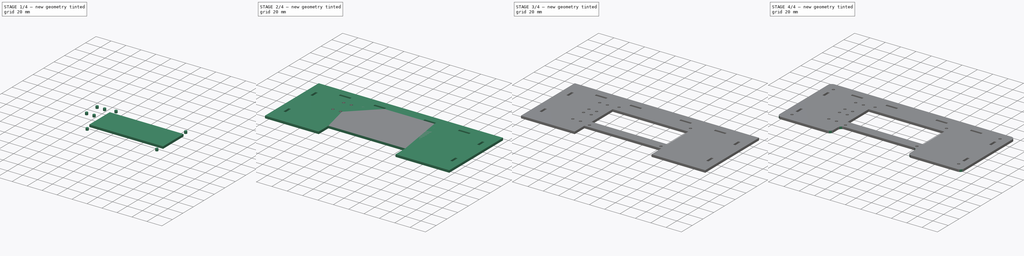
[diagram: build sequence overview — one tinted view per stage of 4, left to right]
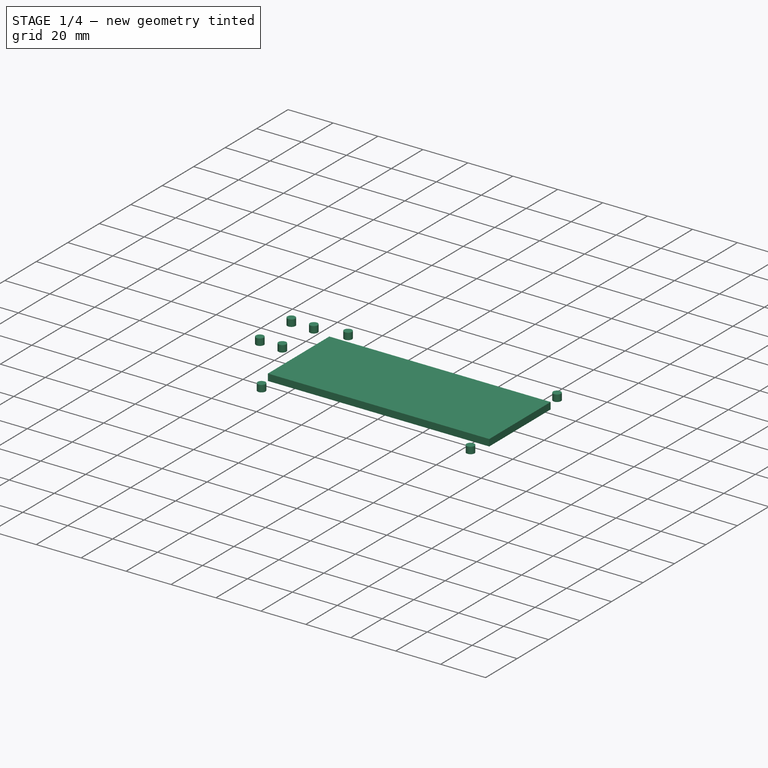
[diagram: stage 1 of 4 — iso view after this stage's code; geometry added in this stage tinted green]
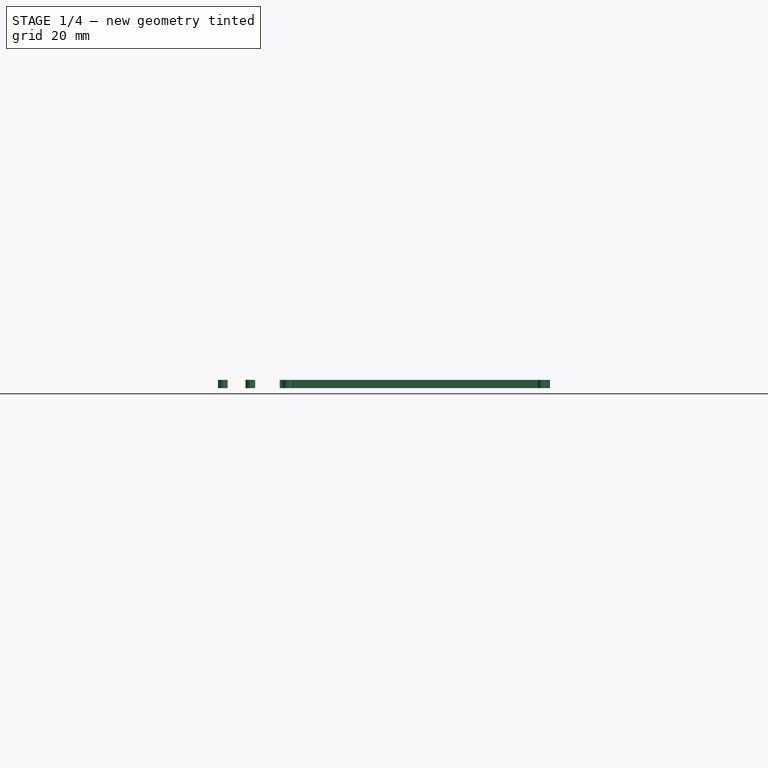
[diagram: stage 1 of 4 — front view after this stage's code; geometry added in this stage tinted green]
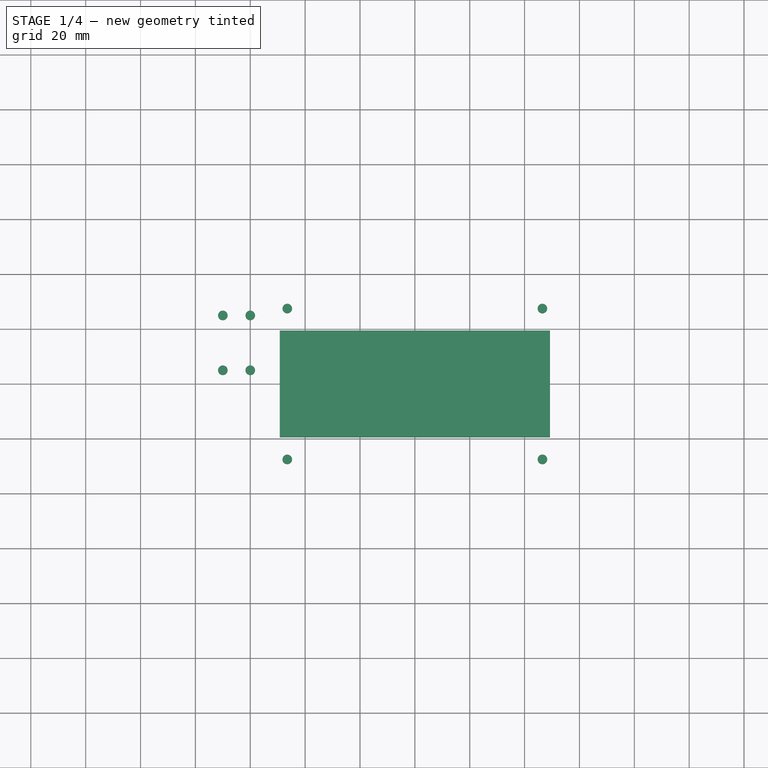
[diagram: stage 1 of 4 — top view after this stage's code; geometry added in this stage tinted green]
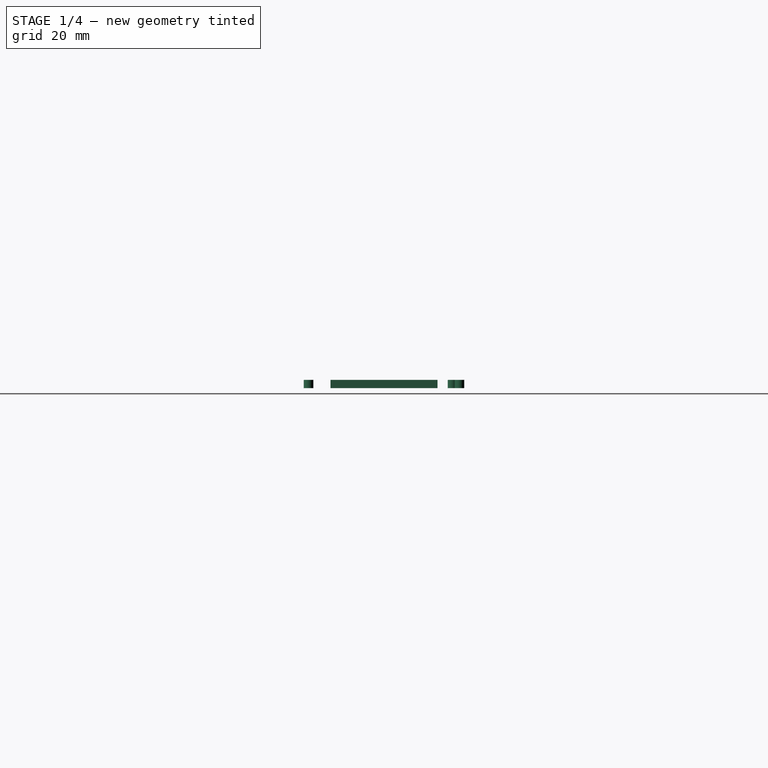
[diagram: stage 1 of 4 — right view after this stage's code; geometry added in this stage tinted green]
FCSTD DOCUMENT
Label: weather_kit_front
objects: Sketcher::SketchObject×5, PartDesign::Pad×5, Part::Cut×4, Part::Fillet×1, Drawing::FeatureViewPart×1, Drawing::FeaturePage×1
note: 20 computed .brp shape members not serialized (recipe doc carries the construction recipe); baked Part::Feature solids carry a one-line shape summary decoded from their .brp

FEATURE [PartDesign::Pad] Pad002
  Length = 3
  Length2 = 100
  Midplane = true
  Sketch = -> Sketch003004
  Type = 0
FEATURE [PartDesign::Pad] Pad005
  Length = 3
  Length2 = 100
  Midplane = true
  Sketch = -> Sketch001001
  Type = 0
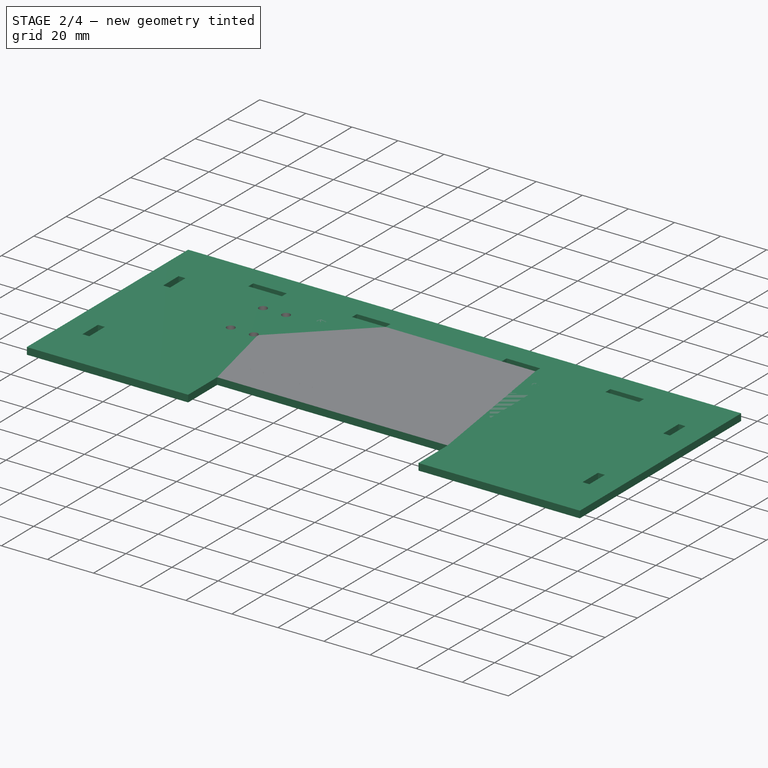
[diagram: stage 2 of 4 — iso view after this stage's code; geometry added in this stage tinted green]
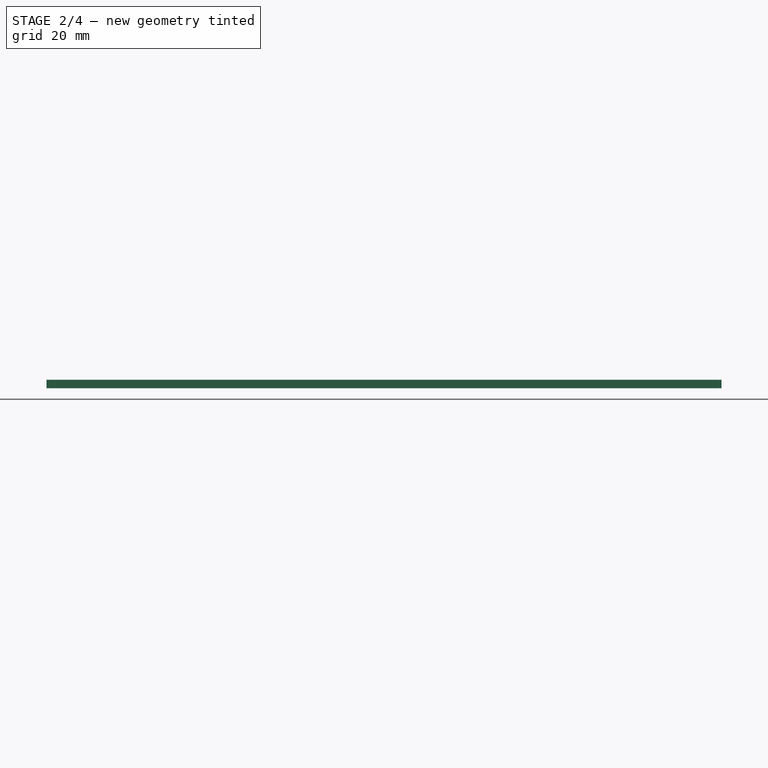
[diagram: stage 2 of 4 — front view after this stage's code; geometry added in this stage tinted green]
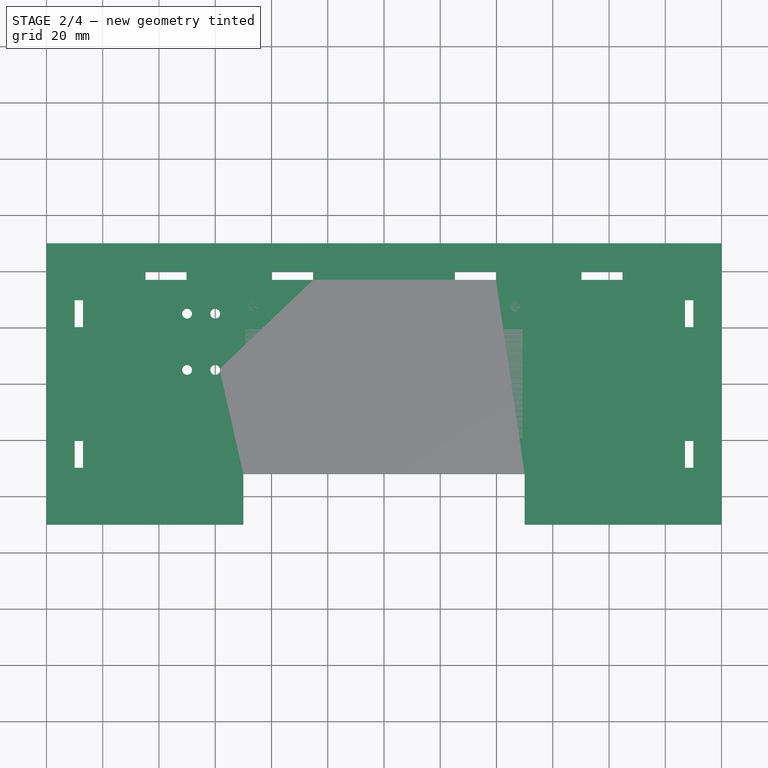
[diagram: stage 2 of 4 — top view after this stage's code; geometry added in this stage tinted green]
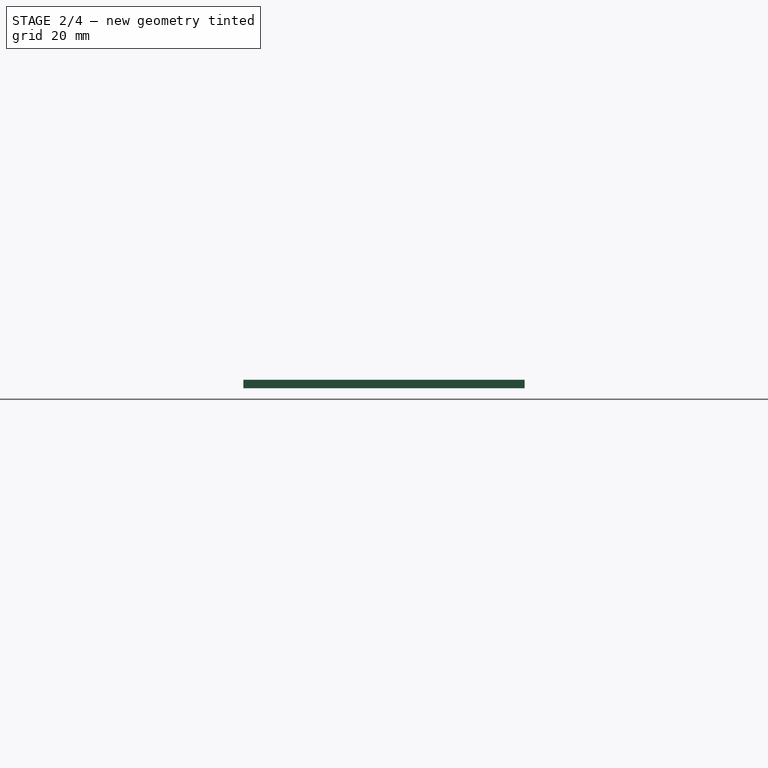
[diagram: stage 2 of 4 — right view after this stage's code; geometry added in this stage tinted green]
FEATURE [Sketcher::SketchObject] Sketch003003  label="SketchFront"
  sketch-geometry (40):
    g0: LineSegment StartX=-120 StartY=50 StartZ=0 EndX=120 EndY=50 EndZ=0
    g1: LineSegment StartX=120 StartY=50 StartZ=0 EndX=120 EndY=-50 EndZ=0
    g2: LineSegment StartX=-120 StartY=-50 StartZ=0 EndX=-120 EndY=50 EndZ=0
    g3: LineSegment StartX=50 StartY=-50 StartZ=0 EndX=50 EndY=-32 EndZ=0
    g4: LineSegment StartX=50 StartY=-32 StartZ=0 EndX=-50 EndY=-32 EndZ=0
    g5: LineSegment StartX=-50 StartY=-32 StartZ=0 EndX=-50 EndY=-50 EndZ=0
    g6: LineSegment StartX=-50 StartY=-50 StartZ=0 EndX=-120 EndY=-50 EndZ=0
    g7: LineSegment StartX=50 StartY=-50 StartZ=0 EndX=120 EndY=-50 EndZ=0
    g8: LineSegment StartX=107 StartY=-20.2 StartZ=0 EndX=110 EndY=-20.2 EndZ=0
    g9: LineSegment StartX=110 StartY=-20.2 StartZ=0 EndX=110 EndY=-29.8 EndZ=0
    g10: LineSegment StartX=110 StartY=-29.8 StartZ=0 EndX=107 EndY=-29.8 EndZ=0
    g11: LineSegment StartX=107 StartY=-29.8 StartZ=0 EndX=107 EndY=-20.2 EndZ=0
    g12: LineSegment StartX=107 StartY=29.8 StartZ=0 EndX=110 EndY=29.8 EndZ=0
    g13: LineSegment StartX=110 StartY=29.8 StartZ=0 EndX=110 EndY=20.2 EndZ=0
    g14: LineSegment StartX=110 StartY=20.2 StartZ=0 EndX=107 EndY=20.2 EndZ=0
    g15: LineSegment StartX=107 StartY=20.2 StartZ=0 EndX=107 EndY=29.8 EndZ=0
    g16: LineSegment StartX=-110 StartY=29.8 StartZ=0 EndX=-107 EndY=29.8 EndZ=0
    g17: LineSegment StartX=-107 StartY=29.8 StartZ=0 EndX=-107 EndY=20.2 EndZ=0
    g18: LineSegment StartX=-107 StartY=20.2 StartZ=0 EndX=-110 EndY=20.2 EndZ=0
    g19: LineSegment StartX=-110 StartY=20.2 StartZ=0 EndX=-110 EndY=29.8 EndZ=0
    g20: LineSegment StartX=-110 StartY=-20.2 StartZ=0 EndX=-107 EndY=-20.2 EndZ=0
    g21: LineSegment StartX=-107 StartY=-20.2 StartZ=0 EndX=-107 EndY=-29.8 EndZ=0
    g22: LineSegment StartX=-107 StartY=-29.8 StartZ=0 EndX=-110 EndY=-29.8 EndZ=0
    g23: LineSegment StartX=-110 StartY=-29.8 StartZ=0 EndX=-110 EndY=-20.2 EndZ=0
    g24: LineSegment StartX=-84.8 StartY=40 StartZ=0 EndX=-70.2 EndY=40 EndZ=0
    g25: LineSegment StartX=-70.2 StartY=40 StartZ=0 EndX=-70.2 EndY=37 EndZ=0
    g26: LineSegment StartX=-70.2 StartY=37 StartZ=0 EndX=-84.8 EndY=37 EndZ=0
    g27: LineSegment StartX=-84.8 StartY=37 StartZ=0 EndX=-84.8 EndY=40 EndZ=0
    g28: LineSegment StartX=-39.8 StartY=40 StartZ=0 EndX=-25.2 EndY=40 EndZ=0
    g29: LineSegment StartX=-25.2 StartY=40 StartZ=0 EndX=-25.2 EndY=37 EndZ=0
    g30: LineSegment StartX=-25.2 StartY=37 StartZ=0 EndX=-39.8 EndY=37 EndZ=0
    g31: LineSegment StartX=-39.8 StartY=37 StartZ=0 EndX=-39.8 EndY=40 EndZ=0
    g32: LineSegment StartX=25.2 StartY=40 StartZ=0 EndX=39.8 EndY=40 EndZ=0
    g33: LineSegment StartX=39.8 StartY=40 StartZ=0 EndX=39.8 EndY=37 EndZ=0
    g34: LineSegment StartX=39.8 StartY=37 StartZ=0 EndX=25.2 EndY=37 EndZ=0
    g35: LineSegment StartX=25.2 StartY=37 StartZ=0 EndX=25.2 EndY=40 EndZ=0
    g36: LineSegment StartX=70.2 StartY=40 StartZ=0 EndX=84.8 EndY=40 EndZ=0
    g37: LineSegment StartX=84.8 StartY=40 StartZ=0 EndX=84.8 EndY=37 EndZ=0
    g38: LineSegment StartX=84.8 StartY=37 StartZ=0 EndX=70.2 EndY=37 EndZ=0
    g39: LineSegment StartX=70.2 StartY=37 StartZ=0 EndX=70.2 EndY=40 EndZ=0
  constraints (120):
    c: Coincident(g0,g1)
    c: Coincident(g2,g0)
    c: Horizontal(g0)
    c: Vertical(g1)
    c: Vertical(g2)
    c: DistanceX(g0) = 240
    c: DistanceY(g1) = -100
    c: DistanceX(g-1,g0) = -120
    c: DistanceY(g-1,g0) = 50
    c: Coincident(g3,g4)
    c: Coincident(g4,g5)
    c: Horizontal(g4)
    c: Vertical(g3)
    c: Vertical(g5)
    c: Coincident(g6,g5)
    c: Coincident(g6,g2)
    c: Horizontal(g6)
    c: Coincident(g7,g3)
    c: Coincident(g7,g1)
    c: Horizontal(g7)
    c: DistanceY(g3,g5) = 0
    c: DistanceY(g5,g4) = 18
    c: DistanceX(g5,g3) = 100
    c: DistanceX(g-1,g3) = 50
    c: Coincident(g8,g9)
    c: Coincident(g9,g10)
    c: Coincident(g10,g11)
    c: Coincident(g11,g8)
    c: Horizontal(g8)
    c: Horizontal(g10)
    c: Vertical(g9)
    c: Vertical(g11)
    c: DistanceX(g10) = -3
    c: DistanceY(g9) = -9.6
    c: Coincident(g12,g13)
    c: Coincident(g13,g14)
    c: Coincident(g14,g15)
    c: Coincident(g15,g12)
    c: Horizontal(g12)
    c: Horizontal(g14)
    c: Vertical(g13)
    c: Vertical(g15)
    c: DistanceX(g14) = -3
    c: DistanceY(g15) = 9.6
    c: DistanceX(g12,g0) = 10
    c: DistanceY(g12,g0) = 20.2
    c: DistanceY(g9,g1) = -20.2
    c: DistanceX(g9,g1) = 10
    c: Coincident(g16,g17)
    c: Coincident(g17,g18)
    c: Coincident(g18,g19)
    c: Coincident(g19,g16)
    c: Horizontal(g16)
    c: Horizontal(g18)
    c: Vertical(g17)
    c: Vertical(g19)
    c: Coincident(g20,g21)
    c: Coincident(g21,g22)
    c: Coincident(g22,g23)
    c: Coincident(g23,g20)
    c: Horizontal(g20)
    c: Horizontal(g22)
    c: Vertical(g21)
    c: Vertical(g23)
    c: DistanceX(g22) = -3
    c: DistanceY(g23) = 9.6
    c: DistanceX(g18) = -3
    c: DistanceY(g19) = 9.6
    c: DistanceX(g2,g22) = 10
    c: DistanceY(g22,g2) = -20.2
    c: DistanceX(g16,g0) = -10
    c: DistanceY(g16,g0) = 20.2
    c: Coincident(g24,g25)
    c: Coincident(g25,g26)
    c: Coincident(g26,g27)
    c: Coincident(g27,g24)
    c: Horizontal(g24)
    c: Horizontal(g26)
    c: Vertical(g25)
    c: Vertical(g27)
    c: Coincident(g28,g29)
    c: Coincident(g29,g30)
    c: Coincident(g30,g31)
    c: Coincident(g31,g28)
    c: Horizontal(g28)
    c: Horizontal(g30)
    c: Vertical(g29)
    c: Vertical(g31)
    c: DistanceX(g28) = 14.6
    c: DistanceY(g29) = -3
    c: DistanceY(g25) = -3
    c: DistanceX(g24) = 14.6
    c: DistanceX(g24,g0) = -35.2
    c: DistanceY(g0,g24) = -10
    c: DistanceY(g28,g24) = 0
    c: DistanceX(g24,g28) = 30.4
    c: Coincident(g32,g33)
    c: Coincident(g33,g34)
    c: Coincident(g34,g35)
    c: Coincident(g35,g32)
    c: Horizontal(g32)
    c: Horizontal(g34)
    c: Vertical(g33)
    c: Vertical(g35)
    c: Coincident(g36,g37)
    c: Coincident(g37,g38)
    c: Coincident(g38,g39)
    c: Coincident(g39,g36)
    c: Horizontal(g36)
    c: Horizontal(g38)
    c: Vertical(g37)
    c: Vertical(g39)
    c: DistanceX(g38) = -14.6
    c: DistanceX(g34) = -14.6
    c: DistanceY(g35) = 3
    c: DistanceY(g39) = 3
    c: DistanceY(g36,g32) = 0
    c: DistanceX(g32,g36) = 30.4
    c: DistanceX(g36,g0) = 35.2
    c: DistanceY(g36,g0) = 10
FEATURE [Sketcher::SketchObject] Sketch003004  label="SketchBricklet4"
  sketch-geometry (4):
    g0: Circle CenterX=-70 CenterY=5 CenterZ=0 NormalX=0 NormalY=0 NormalZ=1 Radius=1.75
    g1: Circle CenterX=-70 CenterY=25 CenterZ=0 NormalX=0 NormalY=0 NormalZ=1 Radius=1.75
    g2: Circle CenterX=-60 CenterY=25 CenterZ=0 NormalX=0 NormalY=0 NormalZ=1 Radius=1.75
    g3: Circle CenterX=-60 CenterY=5 CenterZ=0 NormalX=0 NormalY=0 NormalZ=1 Radius=1.75
  constraints (12):
    c: DistanceY(g0,g1) = 20
    c: Radius(g0) = 1.75
    c: Radius(g1) = 1.75
    c: Radius(g2) = 1.75
    c: Radius(g3) = 1.75
    c: DistanceX(g1,g2) = 10
    c: DistanceX(g0,g3) = 10
    c: DistanceY(g0,g3) = 0
    c: DistanceY(g1,g2) = 0
    c: DistanceX(g3,g2) = 0
    c: DistanceX(g-1,g2) = -60
    c: DistanceY(g-1,g3) = 5
FEATURE [Sketcher::SketchObject] Sketch003002  label="SketchBricklet2"
  sketch-geometry (4):
    g0: Circle CenterX=-70 CenterY=-25 CenterZ=0 NormalX=0 NormalY=0 NormalZ=1 Radius=1.75
    g1: Circle CenterX=-70 CenterY=-5 CenterZ=0 NormalX=0 NormalY=0 NormalZ=1 Radius=1.75
    g2: Circle CenterX=-60 CenterY=-5 CenterZ=0 NormalX=0 NormalY=0 NormalZ=1 Radius=1.75
    g3: Circle CenterX=-60 CenterY=-25 CenterZ=0 NormalX=0 NormalY=0 NormalZ=1 Radius=1.75
  constraints (12):
    c: DistanceY(g0,g1) = 20
    c: Radius(g0) = 1.75
    c: Radius(g1) = 1.75
    c: Radius(g2) = 1.75
    c: Radius(g3) = 1.75
    c: DistanceX(g1,g2) = 10
    c: DistanceX(g0,g3) = 10
    c: DistanceY(g0,g3) = 0
    c: DistanceY(g1,g2) = 0
    c: DistanceX(g3,g2) = 0
    c: DistanceX(g-1,g2) = -60
    c: DistanceY(g-1,g2) = -5
FEATURE [PartDesign::Pad] Pad
  Length = 3
  Length2 = 100
  Midplane = true
  Sketch = -> Sketch003003
  Type = 0
FEATURE [PartDesign::Pad] Pad001
  Length = 3
  Length2 = 100
  Midplane = true
  Sketch = -> Sketch003002
  Type = 0
FEATURE [Sketcher::SketchObject] Sketch001001  label="SketchLCD"
  sketch-geometry (8):
    g0: Circle CenterX=46.5 CenterY=27.5 CenterZ=0 NormalX=0 NormalY=0 NormalZ=1 Radius=1.75
    g1: Circle CenterX=-46.5 CenterY=27.5 CenterZ=0 NormalX=0 NormalY=0 NormalZ=1 Radius=1.75
    g2: Circle CenterX=-46.5 CenterY=-27.5 CenterZ=0 NormalX=0 NormalY=0 NormalZ=1 Radius=1.75
    g3: Circle CenterX=46.5 CenterY=-27.5 CenterZ=0 NormalX=0 NormalY=0 NormalZ=1 Radius=1.75
    g4: LineSegment StartX=-49.25 StartY=19.5 StartZ=0 EndX=49.25 EndY=19.5 EndZ=0
    g5: LineSegment StartX=49.25 StartY=19.5 StartZ=0 EndX=49.25 EndY=-19.5 EndZ=0
    g6: LineSegment StartX=49.25 StartY=-19.5 StartZ=0 EndX=-49.25 EndY=-19.5 EndZ=0
    g7: LineSegment StartX=-49.25 StartY=-19.5 StartZ=0 EndX=-49.25 EndY=19.5 EndZ=0
  constraints (24):
    c: Radius(g0) = 1.75
    c: Radius(g3) = 1.75
    c: Radius(g2) = 1.75
    c: Radius(g1) = 1.75
    c: Coincident(g4,g5)
    c: Coincident(g5,g6)
    c: Coincident(g6,g7)
    c: Coincident(g7,g4)
    c: Horizontal(g4)
    c: Horizontal(g6)
    c: Vertical(g5)
    c: Vertical(g7)
    c: DistanceX(g4) = 98.5
    c: DistanceY(g7) = 39
    c: DistanceY(g1,g4) = -8
    c: DistanceX(g3,g0) = 0
    c: DistanceX(g2,g1) = 0
    c: DistanceY(g2,g3) = 0
    c: DistanceY(g1,g0) = 0
    c: DistanceX(g2,g3) = 93
    c: DistanceX(g2,g6) = -2.75
    c: DistanceY(g6,g2) = -8
    c: DistanceX(g-1,g5) = 49.25
    c: DistanceY(g-1,g5) = -19.5
FEATURE [Part::Cut] Cut
  Base = -> Pad
  Tool = -> Pad002
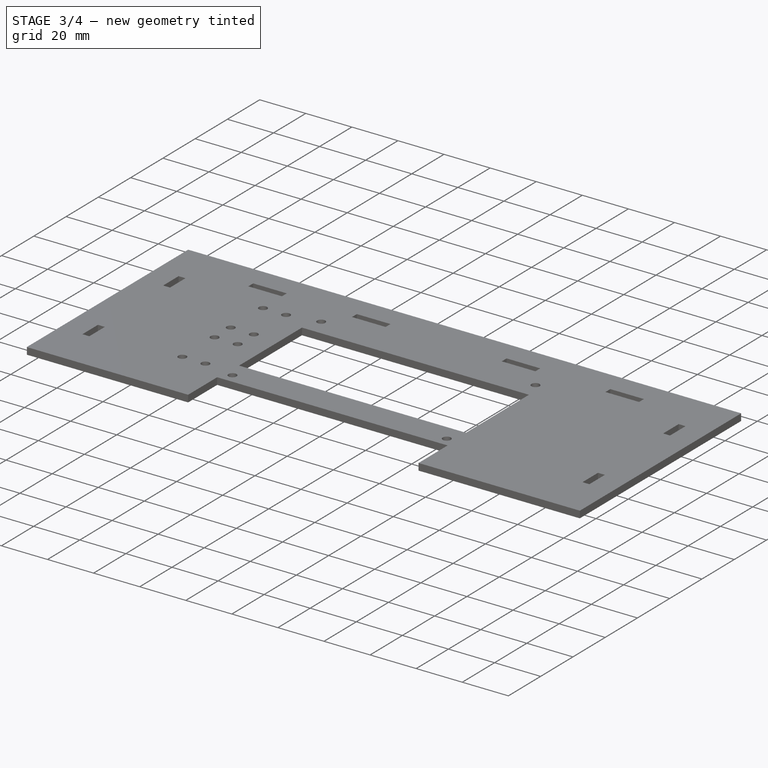
[diagram: stage 3 of 4 — iso view after this stage's code; geometry added in this stage tinted green]
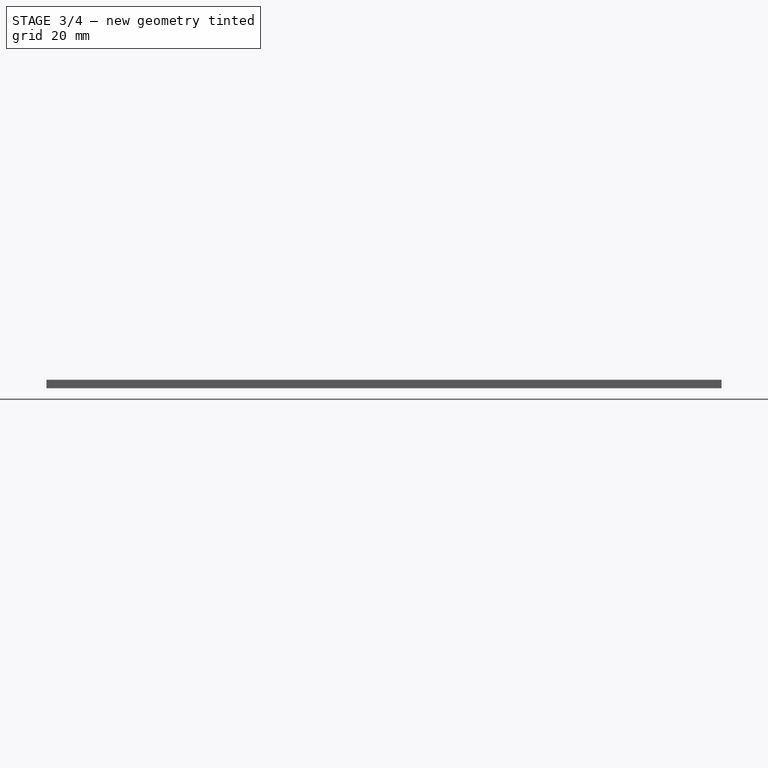
[diagram: stage 3 of 4 — front view after this stage's code; geometry added in this stage tinted green]
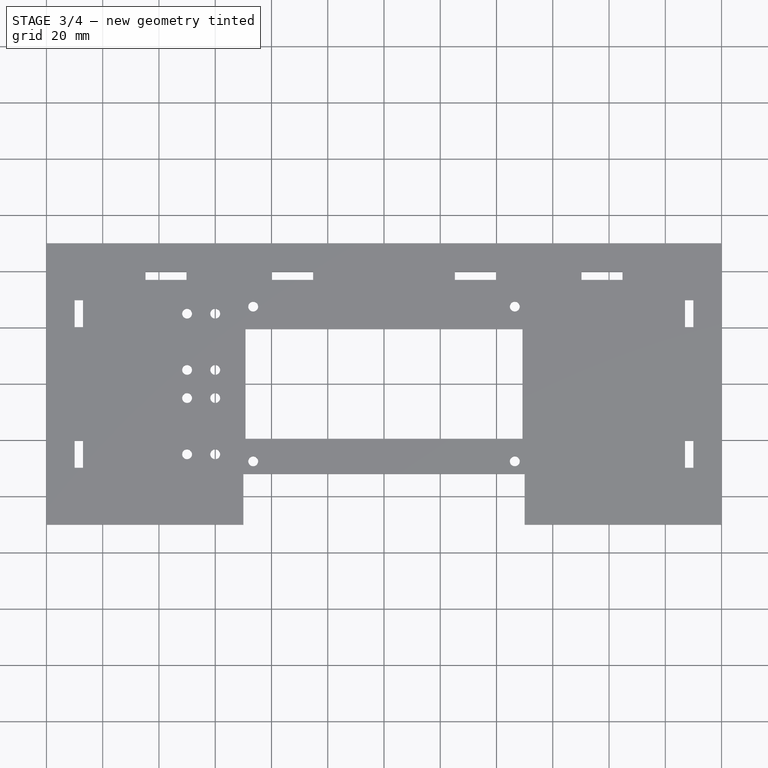
[diagram: stage 3 of 4 — top view after this stage's code; geometry added in this stage tinted green]
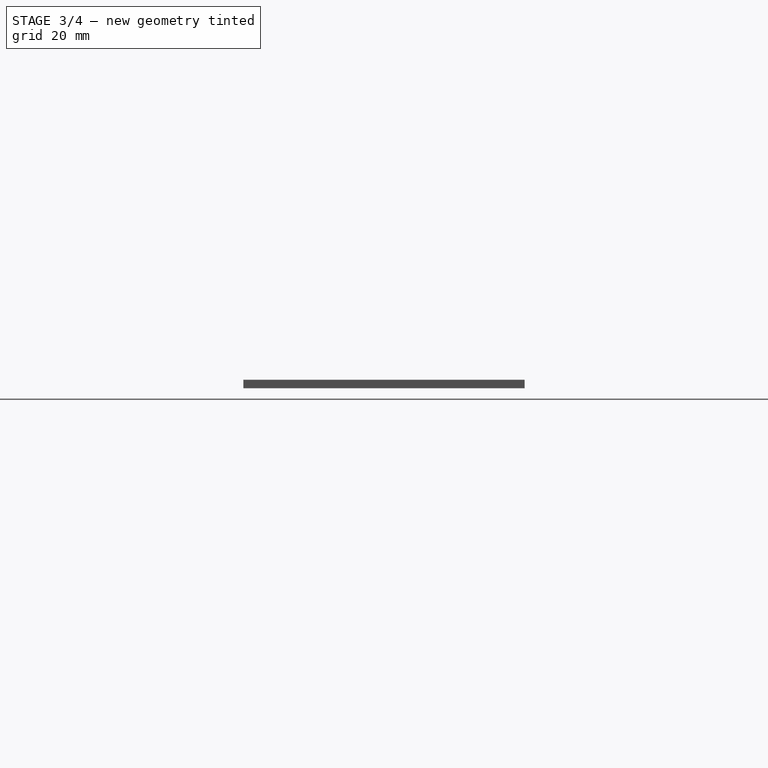
[diagram: stage 3 of 4 — right view after this stage's code; geometry added in this stage tinted green]
FEATURE [Sketcher::SketchObject] Sketch
  sketch-geometry (4):
    g0: Circle CenterX=-108.5 CenterY=38.5 CenterZ=0 NormalX=0 NormalY=0 NormalZ=1 Radius=1.75
    g1: Circle CenterX=-108.5 CenterY=-38.5 CenterZ=0 NormalX=0 NormalY=0 NormalZ=1 Radius=1.75
    g2: Circle CenterX=108.5 CenterY=38.5 CenterZ=0 NormalX=0 NormalY=0 NormalZ=1 Radius=1.75
    g3: Circle CenterX=108.5 CenterY=-38.5 CenterZ=0 NormalX=0 NormalY=0 NormalZ=1 Radius=1.75
  constraints (12):
    c: Radius(g1) = 1.75
    c: Radius(g0) = 1.75
    c: Radius(g2) = 1.75
    c: Radius(g3) = 1.75
    c: DistanceX(g-1,g1) = -108.5
    c: DistanceY(g-1,g1) = -38.5
    c: DistanceX(g-1,g0) = -108.5
    c: DistanceY(g-1,g0) = 38.5
    c: DistanceY(g-1,g2) = 38.5
    c: DistanceX(g-1,g2) = 108.5
    c: DistanceX(g-1,g3) = 108.5
    c: DistanceY(g-1,g3) = -38.5
FEATURE [PartDesign::Pad] Pad004
  Length = 3
  Length2 = 100
  Midplane = true
  Sketch = -> Sketch
  Type = 0
FEATURE [Part::Cut] Cut001
  Base = -> Cut
  Tool = -> Pad001
FEATURE [Part::Cut] Cut002
  Base = -> Cut001
  Tool = -> Pad005
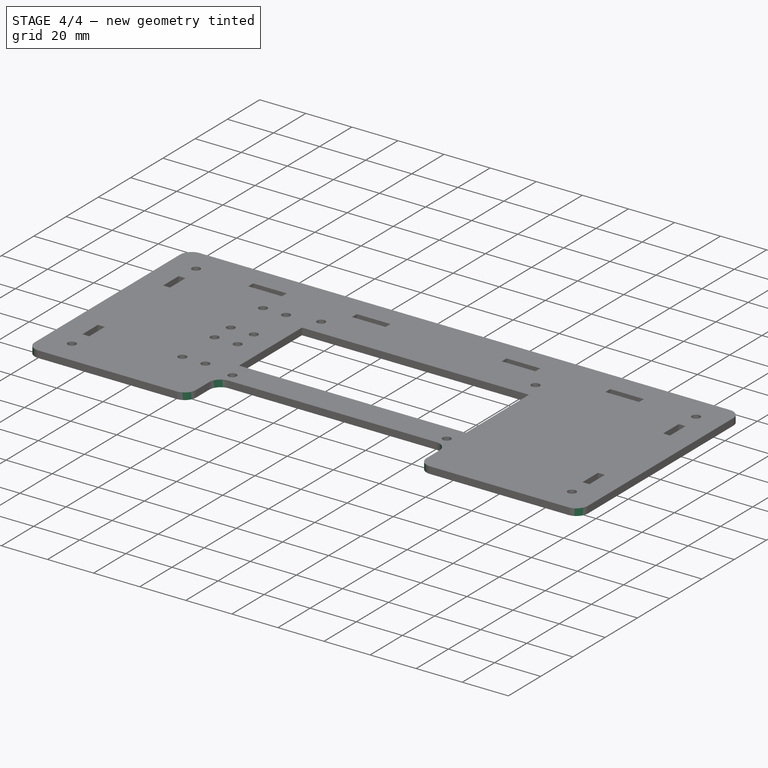
[diagram: stage 4 of 4 — iso view after this stage's code; geometry added in this stage tinted green]
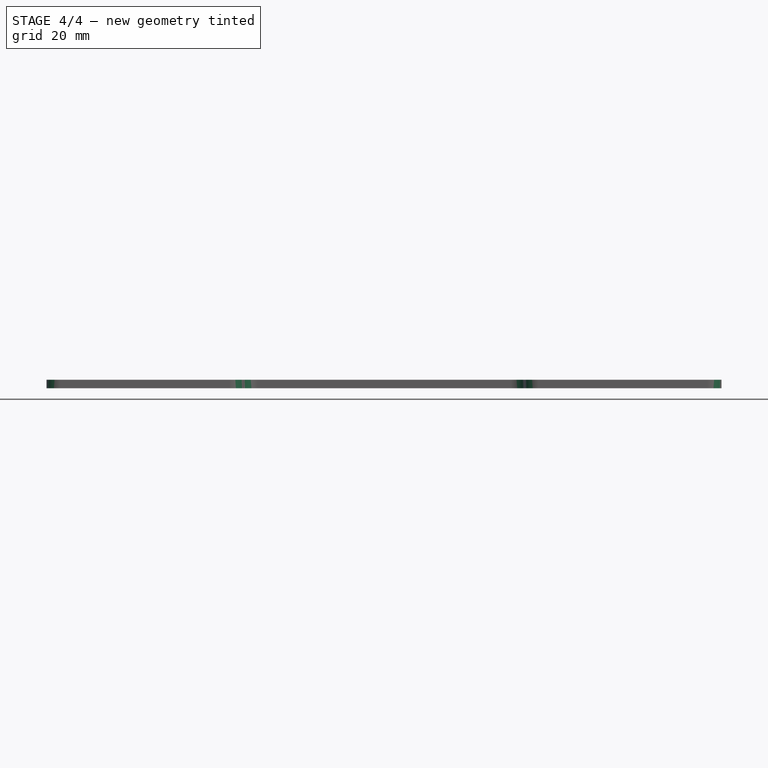
[diagram: stage 4 of 4 — front view after this stage's code; geometry added in this stage tinted green]
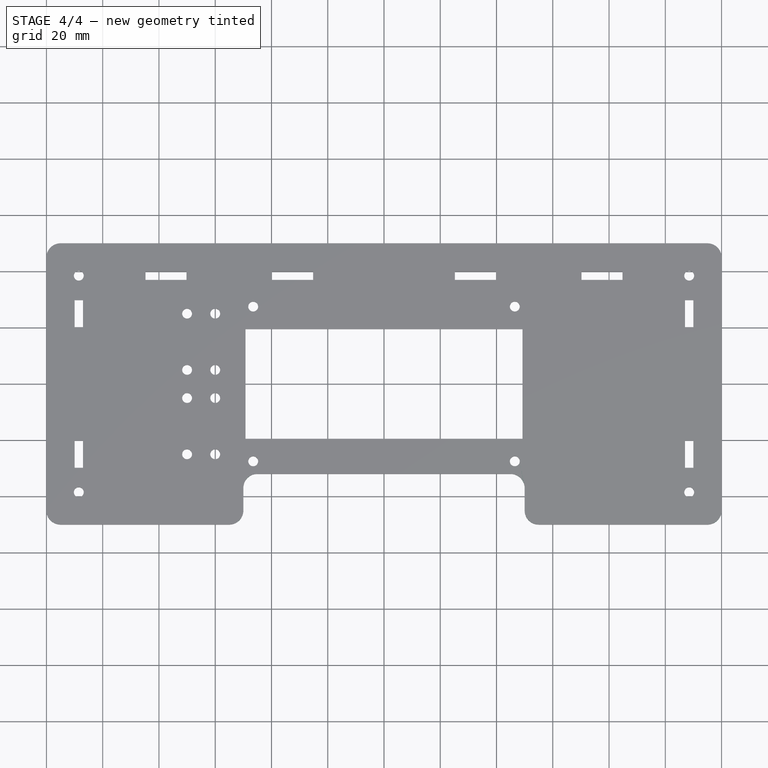
[diagram: stage 4 of 4 — top view after this stage's code; geometry added in this stage tinted green]
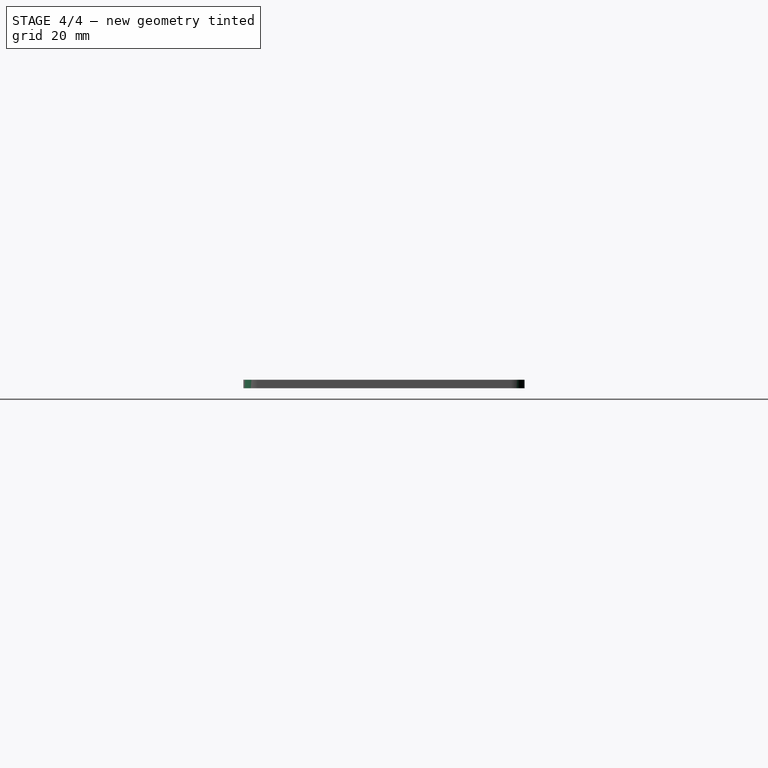
[diagram: stage 4 of 4 — right view after this stage's code; geometry added in this stage tinted green]
FEATURE [Part::Cut] Cut003
  Base = -> Cut002
  Tool = -> Pad004
FEATURE [Part::Fillet] Fillet
  Base = -> Cut003
  Edges = 8 edges r=5: [Edge1,Edge2,Edge5,Edge8,Edge125,Edge126,Edge131,Edge132]
FEATURE [Drawing::FeatureViewPart] View
  Direction = (0,0,1)
  LineWidth = 0.35
  Rotation = 0
  ShowHiddenLines = false
  ShowSmoothLines = false
  Source = -> Fillet
  Tolerance = 0.05
  ViewResult = <blob: 3242 chars omitted>
  X = 200
  Y = 100
FEATURE [Drawing::FeaturePage] Page
  EditableTexts = AUTHOR NAME | CREATION DATE | SUPERVISOR NAME | CHECK DATE | SCALE | WEIGHT | NUMBER | SHEET | TITLE | SUBTITLE
  Group = -> [View]
  Template = <path>
note: 1 file-system path scrubbed to <path> (originals preserved in the JSON sidecar)
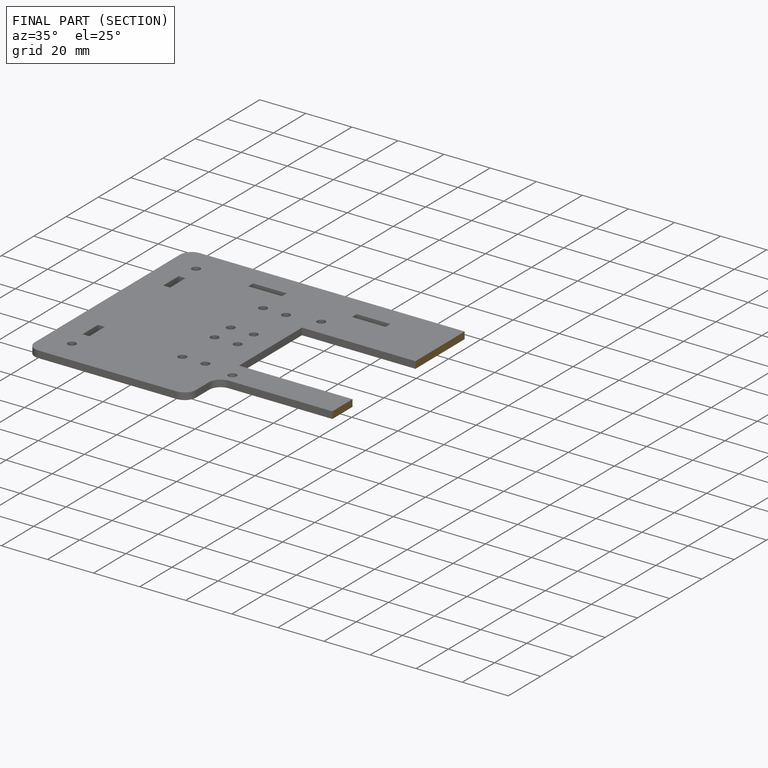
[diagram: finished part — half-section view (interior)]
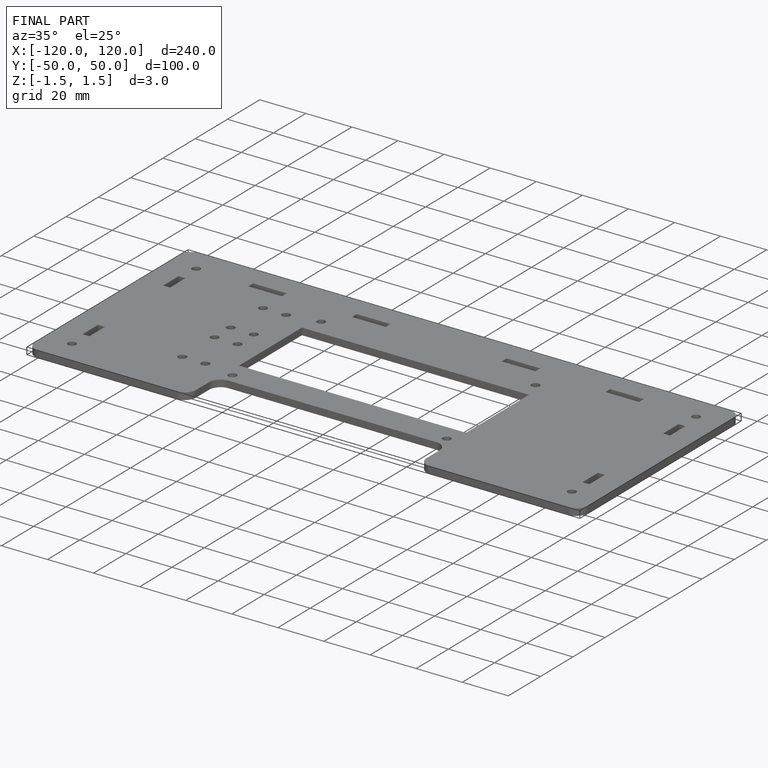
[diagram: finished part — iso view with bounding-box wireframe]
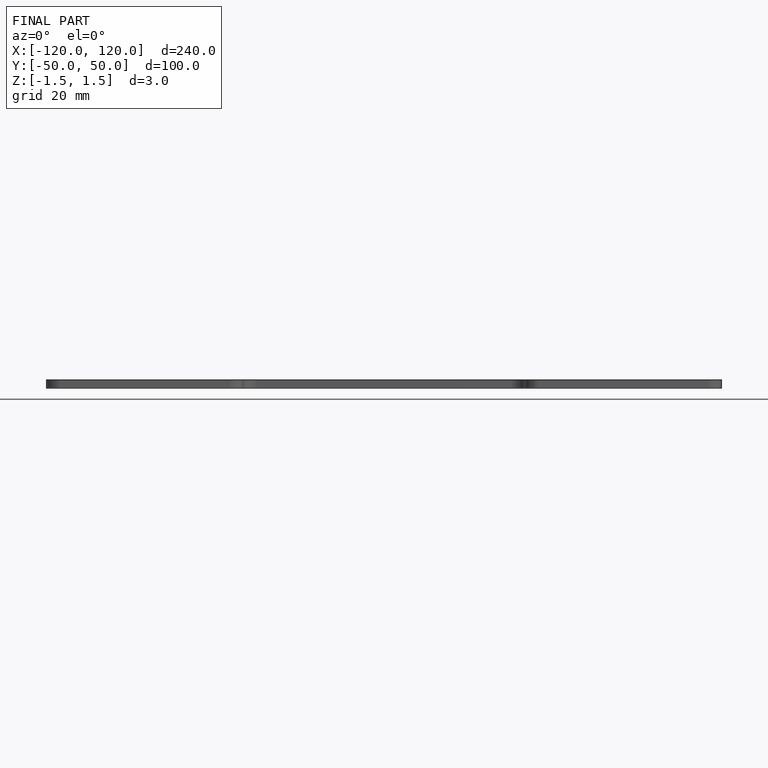
[diagram: finished part — front view with bounding-box wireframe]
